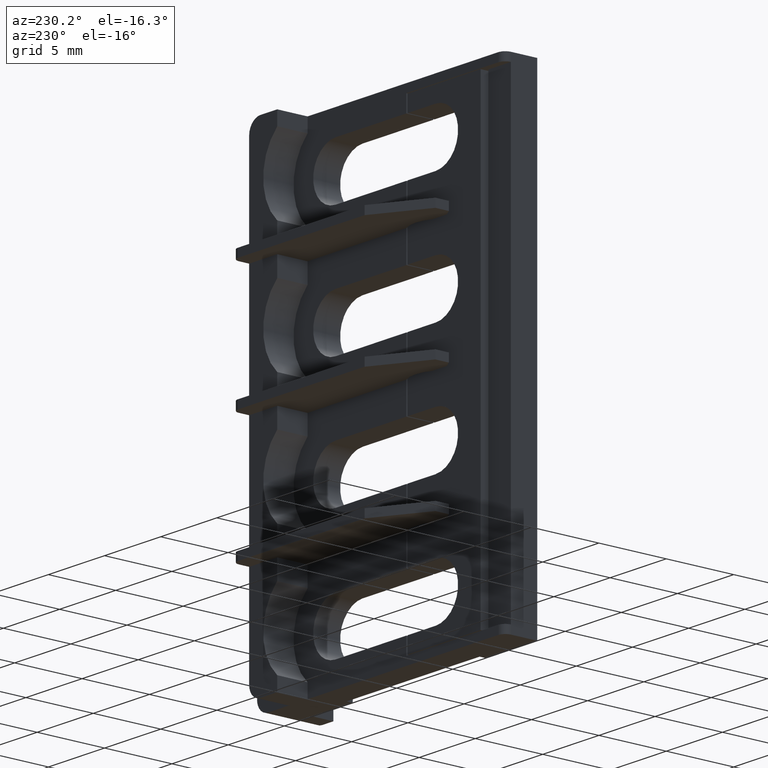
[diagram: clean part render]
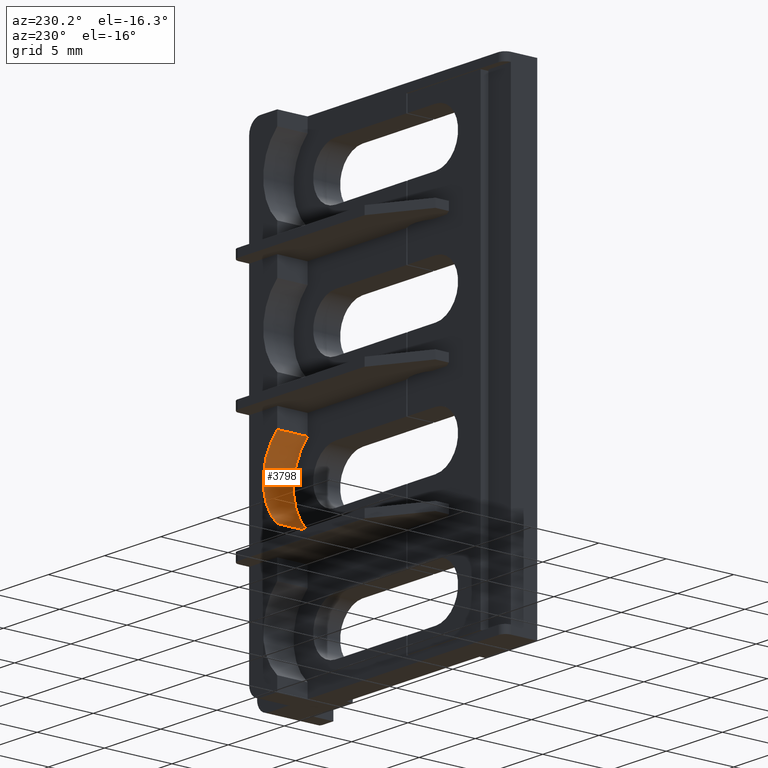
[diagram: same view with one face highlighted and labeled with its STEP entity id]
A machine part, auxiliary view. The second image highlights one B-rep face of the part: STEP entity #3798.
In plain terms, the highlighted cylindrical surface (partial cylindrical patch) has radius 3.75 mm, axis along (-0, 1, -0).
Its self-contained STEP definition (entity closure, byte-faithful):
#718 = CARTESIAN_POINT ( 'NONE',  ( 459.1252094327940100, 111.3976727223466000, 13.40000000000000000 ) ) ;
#731 = DIRECTION ( 'NONE',  ( -2.530253133731424900E-033, 1.000000000000000000, -2.733577826868160200E-020 ) ) ;
#739 = CYLINDRICAL_SURFACE ( 'NONE', #3345, 3.749999999999998200 ) ;
#747 = DIRECTION ( 'NONE',  ( 0.0000000000000000000, 0.0000000000000000000, 1.000000000000000000 ) ) ;
#752 = FACE_OUTER_BOUND ( 'NONE', #4569, .T. ) ;
#1213 = CARTESIAN_POINT ( 'NONE',  ( 461.6252094327939500, 148.3378730676890000, 16.19508497187475300 ) ) ;
#1223 = CARTESIAN_POINT ( 'NONE',  ( 461.6252094327939500, 146.0878730676890000, 16.19508497187476000 ) ) ;
#1273 = CARTESIAN_POINT ( 'NONE',  ( 461.6252094327940700, 146.0878730676890000, 10.60491502812529100 ) ) ;
#1302 = CARTESIAN_POINT ( 'NONE',  ( 461.6252094327940700, 148.3378730676890000, 10.60491502812529100 ) ) ;
#1396 = CARTESIAN_POINT ( 'NONE',  ( 461.6252094327940700, 111.3976727223466000, 10.60491502812531000 ) ) ;
#1401 = LINE ( 'NONE', #1396, #2964 ) ;
#1408 = DIRECTION ( 'NONE',  ( -2.530253133731424900E-033, 1.000000000000000000, -2.733577826868160200E-020 ) ) ;
#1489 = DIRECTION ( 'NONE',  ( 2.530253133731424900E-033, -1.000000000000000000, 2.733577826868160200E-020 ) ) ;
#1491 = CARTESIAN_POINT ( 'NONE',  ( 461.6252094327939500, 111.3976727223466000, 16.19508497187478500 ) ) ;
#1504 = LINE ( 'NONE', #1491, #2962 ) ;
#1514 = DIRECTION ( 'NONE',  ( -2.530253133731424900E-033, 1.000000000000000000, -2.733577826868160200E-020 ) ) ;
#1539 = CARTESIAN_POINT ( 'NONE',  ( 459.1252094327940100, 146.0878730676890000, 13.40000000000000000 ) ) ;
#1540 = DIRECTION ( 'NONE',  ( 0.0000000000000000000, 0.0000000000000000000, 1.000000000000000000 ) ) ;
#1658 = DIRECTION ( 'NONE',  ( -2.530253133731424900E-033, 1.000000000000000000, -2.733577826868160200E-020 ) ) ;
#1672 = DIRECTION ( 'NONE',  ( 0.0000000000000000000, 0.0000000000000000000, 1.000000000000000000 ) ) ;
#1688 = CARTESIAN_POINT ( 'NONE',  ( 459.1252094327940100, 148.3378730676890000, 13.40000000000000000 ) ) ;
#2136 = ORIENTED_EDGE ( 'NONE', *, *, #3532, .T. ) ;
#2137 = ORIENTED_EDGE ( 'NONE', *, *, #3491, .F. ) ;
#2139 = ORIENTED_EDGE ( 'NONE', *, *, #3464, .F. ) ;
#2162 = ORIENTED_EDGE ( 'NONE', *, *, #3445, .F. ) ;
#2479 = VERTEX_POINT ( 'NONE', #1223 ) ;
#2489 = VERTEX_POINT ( 'NONE', #1273 ) ;
#2493 = VERTEX_POINT ( 'NONE', #1213 ) ;
#2517 = VERTEX_POINT ( 'NONE', #1302 ) ;
#2962 = VECTOR ( 'NONE', #1489, 1000.000000000000000 ) ;
#2964 = VECTOR ( 'NONE', #1408, 1000.000000000000000 ) ;
#2990 = AXIS2_PLACEMENT_3D ( 'NONE', #1539, #1514, #1540 ) ;
#3013 = CIRCLE ( 'NONE', #2990, 3.749999999999998200 ) ;
#3028 = AXIS2_PLACEMENT_3D ( 'NONE', #1688, #1658, #1672 ) ;
#3061 = CIRCLE ( 'NONE', #3028, 3.749999999999998200 ) ;
#3345 = AXIS2_PLACEMENT_3D ( 'NONE', #718, #731, #747 ) ;
#3445 = EDGE_CURVE ( 'NONE', #2489, #2517, #1401, .T. ) ;
#3464 = EDGE_CURVE ( 'NONE', #2493, #2479, #1504, .T. ) ;
#3491 = EDGE_CURVE ( 'NONE', #2479, #2489, #3013, .T. ) ;
#3532 = EDGE_CURVE ( 'NONE', #2493, #2517, #3061, .T. ) ;
#3798 = ADVANCED_FACE ( 'NONE', ( #752 ), #739, .F. ) ;
#4569 = EDGE_LOOP ( 'NONE', ( #2136, #2162, #2137, #2139 ) ) ;